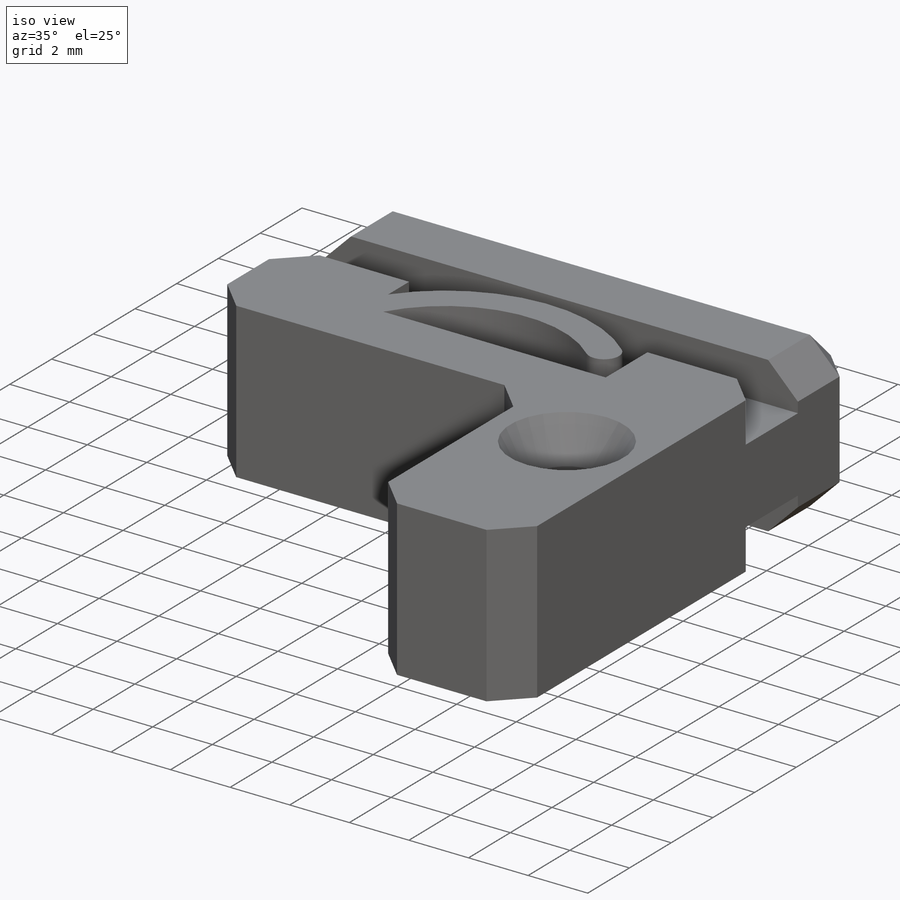
[diagram: iso view]
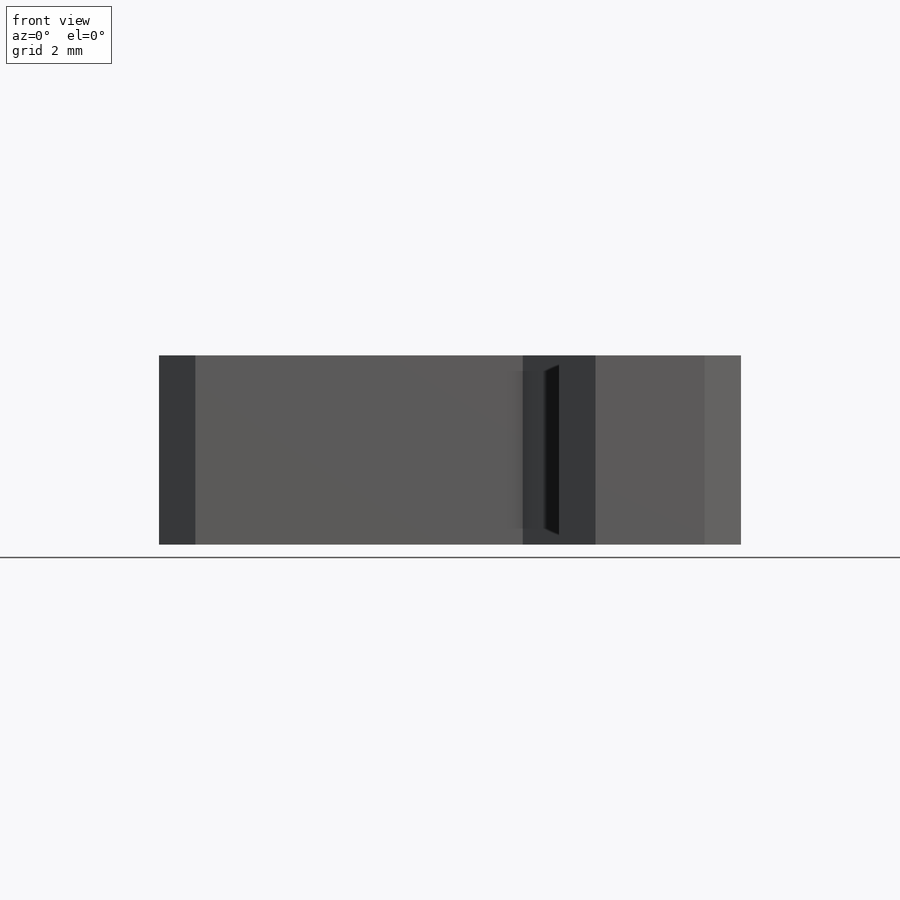
[diagram: front view]
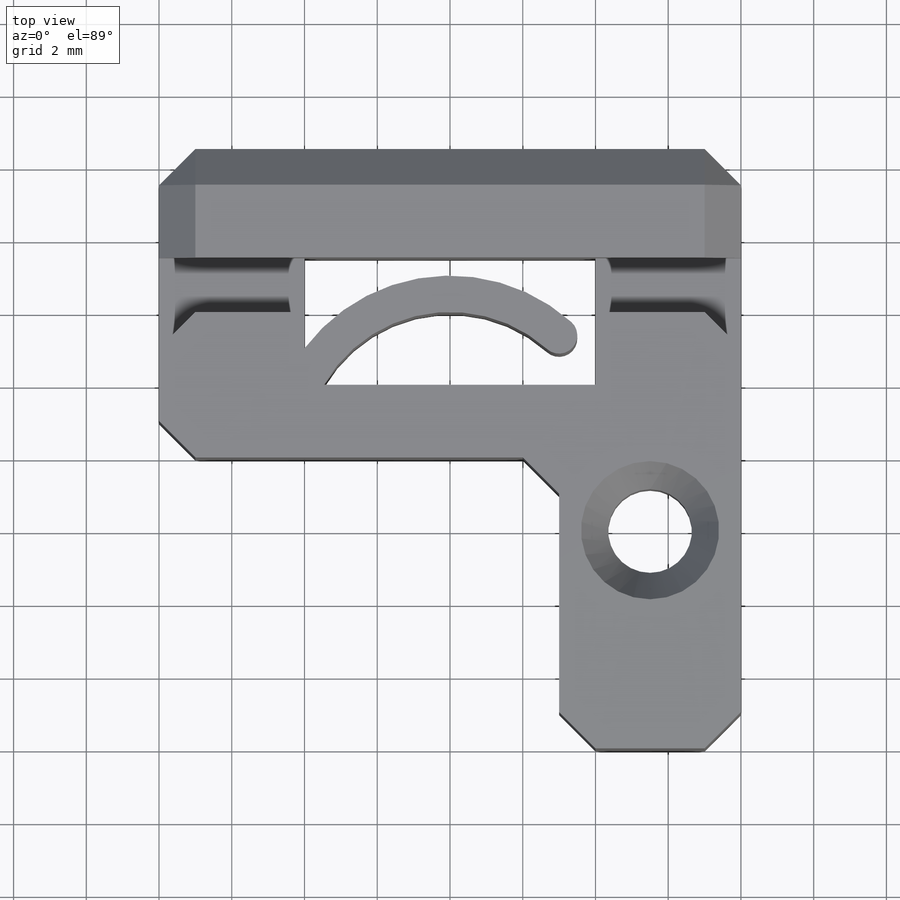
[diagram: top view]
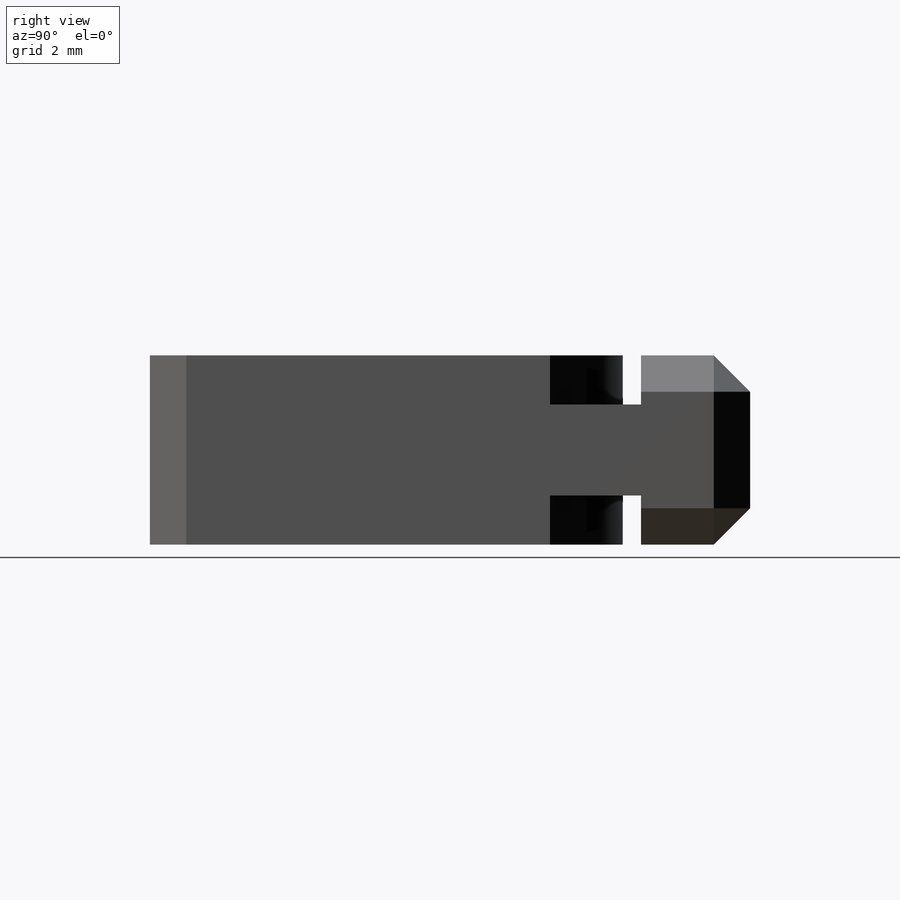
[diagram: right view]
SOLIDWORKS PART (.sldprt)
format: sldprt  version: not decoded by parser v0  size: 242,688 bytes
history: native  units: mm
features: sketch x4, extrude x4, chamfer x2, material x1, mirror x1 (+12 scaffold rows collapsed)
feature tree (24):
  scaffold x12  (default folders/planes/origin — collapsed)
  material  "Material <not specified>"
  sketch  "Sketch1"  dims[c1.D7=2.3mm c1.D1=8.0mm c1.D2=2.0mm c1.D3=16.0mm c1.D4=4.0mm c2.D3=16.0mm c2.D5=12.0mm c2.D6=5.0mm]
  extrude  "Boss-Extrude1"  Depth=5.2mm
  sketch  "Sketch2"  dims[D1=3.0mm D2=1.5mm D3=2.5mm]
  extrude  "Boss-Extrude2"  Depth=4mm
  mirror  "Mirror1"
  sketch  "Sketch3"
  extrude  "Boss-Extrude3"  Depth=8mm
  sketch  "Sketch4"  dims[c1.D1=~3.233549mm c1.D4=5.0mm c2.D1=1.0mm c2.D2=2.0mm c2.D3=0.5mm]
  extrude  "Boss-Extrude4"  Depth=5.2mm
  chamfer  "Chamfer1"  Distance=1mm Angle=45deg
  chamfer  "Chamfer2"  Distance=0.75mm Angle=60deg
decode coverage: 9 of 11 modeling features carry decoded parameters
note: ~ marks probable driven/reference dimensions
note: suppression state not decoded; provenance and decode notes live in map.json
